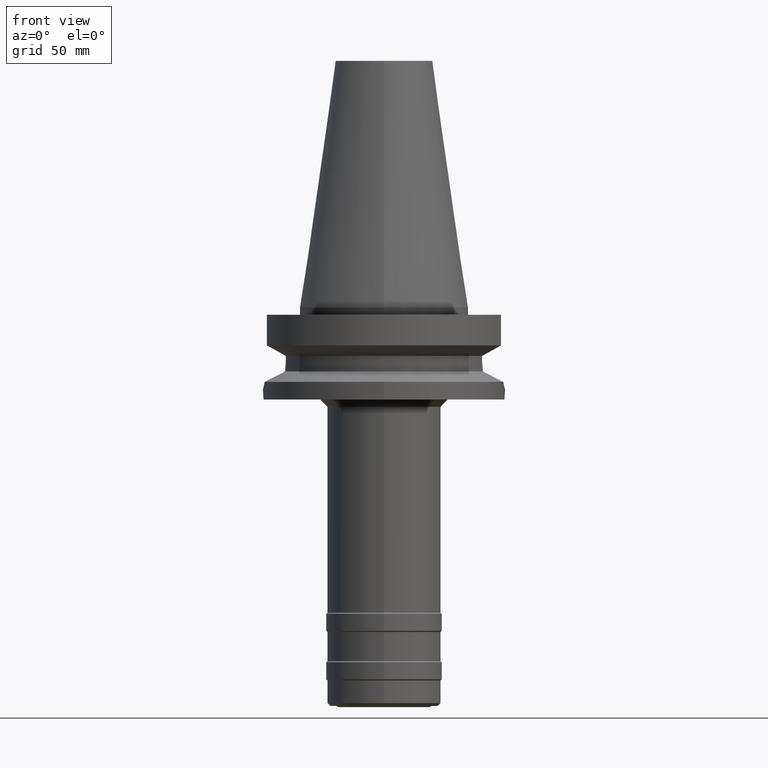
[diagram: clean part render]
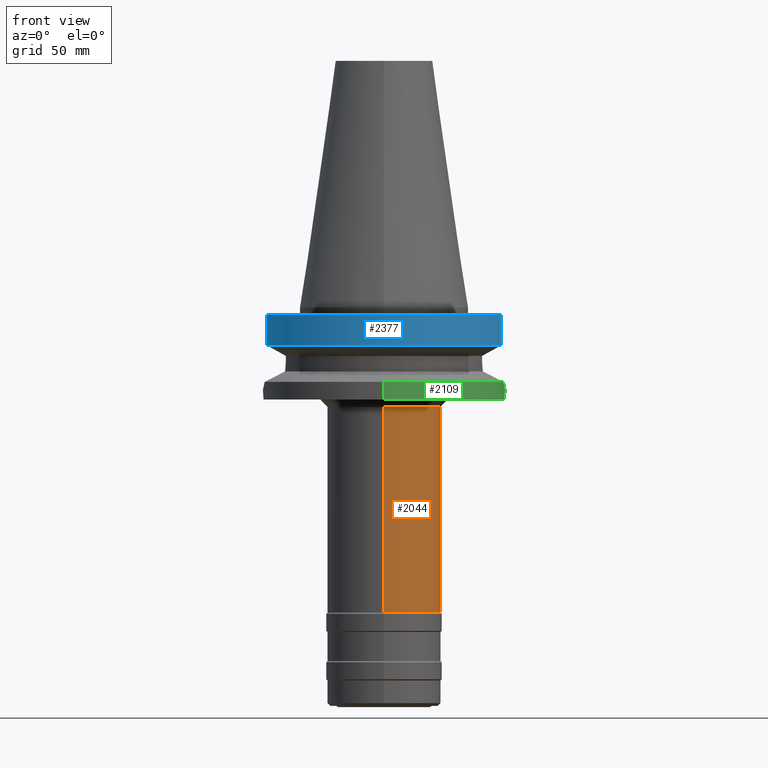
[diagram: same view with three faces highlighted in distinct colors, each labeled with its STEP entity id]
A machine part, front view with three faces highlighted in distinct colors.
Their STEP definitions:

[orange] entity #2044 — the highlighted cylindrical surface (partial cylindrical patch) has radius 23.5 mm, axis along (0, 0, -1).
#563=CARTESIAN_POINT('',(0.E0,0.E0,-1.26E2));
#564=DIRECTION('',(0.E0,0.E0,1.E0));
#565=DIRECTION('',(0.E0,-1.E0,0.E0));
#566=AXIS2_PLACEMENT_3D('',#563,#564,#565);
#594=DIRECTION('',(0.E0,0.E0,-1.E0));
#595=VECTOR('',#594,8.5E1);
#596=CARTESIAN_POINT('',(0.E0,-2.35E1,-4.1E1));
#597=LINE('',#596,#595);
#601=DIRECTION('',(0.E0,0.E0,-1.E0));
#602=VECTOR('',#601,8.5E1);
#603=CARTESIAN_POINT('',(0.E0,2.35E1,-4.1E1));
#604=LINE('',#603,#602);
#615=CARTESIAN_POINT('',(0.E0,0.E0,-4.1E1));
#616=DIRECTION('',(0.E0,0.E0,-1.E0));
#617=DIRECTION('',(0.E0,1.E0,0.E0));
#618=AXIS2_PLACEMENT_3D('',#615,#616,#617);
#1366=CARTESIAN_POINT('',(0.E0,2.35E1,-1.26E2));
#1367=VERTEX_POINT('',#1366);
#1368=CARTESIAN_POINT('',(0.E0,-2.35E1,-1.26E2));
#1369=VERTEX_POINT('',#1368);
#1370=CARTESIAN_POINT('',(0.E0,2.35E1,-4.1E1));
#1371=VERTEX_POINT('',#1370);
#1372=CARTESIAN_POINT('',(0.E0,-2.35E1,-4.1E1));
#1373=VERTEX_POINT('',#1372);
#2032=CARTESIAN_POINT('',(0.E0,2.634705123686E-14,1.1514E2));
#2033=DIRECTION('',(0.E0,0.E0,-1.E0));
#2034=DIRECTION('',(0.E0,-1.E0,0.E0));
#2035=AXIS2_PLACEMENT_3D('',#2032,#2033,#2034);
#2036=CYLINDRICAL_SURFACE('',#2035,2.35E1);
#2037=ORIENTED_EDGE('',*,*,#2022,.T.);
#2038=ORIENTED_EDGE('',*,*,#1999,.F.);
#2039=ORIENTED_EDGE('',*,*,#2026,.F.);
#2041=ORIENTED_EDGE('',*,*,#2040,.F.);
#2042=EDGE_LOOP('',(#2037,#2038,#2039,#2041));
#2043=FACE_OUTER_BOUND('',#2042,.F.);
#567=CIRCLE('',#566,2.35E1);
#619=CIRCLE('',#618,2.35E1);
#1999=EDGE_CURVE('',#1369,#1367,#567,.T.);
#2022=EDGE_CURVE('',#1371,#1367,#604,.T.);
#2026=EDGE_CURVE('',#1373,#1369,#597,.T.);
#2040=EDGE_CURVE('',#1371,#1373,#619,.T.);
#2044=ADVANCED_FACE('',(#2043),#2036,.T.);

[blue] entity #2377 — the highlighted cylindrical surface (partial cylindrical patch) has radius 50 mm, axis along (0, 0, -1).
#977=CARTESIAN_POINT('',(0.E0,2.634705123686E-14,-3.E0));
#978=DIRECTION('',(0.E0,0.E0,-1.E0));
#979=DIRECTION('',(9.664114030784E-1,-2.57E-1,0.E0));
#980=AXIS2_PLACEMENT_3D('',#977,#978,#979);
#985=CARTESIAN_POINT('',(0.E0,2.634705123686E-14,-3.E0));
#986=DIRECTION('',(0.E0,0.E0,-1.E0));
#987=DIRECTION('',(0.E0,-1.E0,0.E0));
#988=AXIS2_PLACEMENT_3D('',#985,#986,#987);
#1090=CARTESIAN_POINT('',(0.E0,1.006319759054E-14,-1.566269223573E1));
#1091=DIRECTION('',(0.E0,0.E0,1.E0));
#1092=DIRECTION('',(-9.664114030784E-1,-2.57E-1,0.E0));
#1093=AXIS2_PLACEMENT_3D('',#1090,#1091,#1092);
#1098=CARTESIAN_POINT('',(0.E0,1.006319759054E-14,-1.566269223573E1));
#1099=DIRECTION('',(0.E0,0.E0,1.E0));
#1100=DIRECTION('',(0.E0,-1.E0,0.E0));
#1101=AXIS2_PLACEMENT_3D('',#1098,#1099,#1100);
#1122=DIRECTION('',(-8.100800697241E-8,3.046187202871E-7,1.E0));
#1123=VECTOR('',#1122,1.266265768251E1);
#1124=CARTESIAN_POINT('',(-4.832056912814E1,-1.285000385728E1,
-1.566265768251E1));
#1125=LINE('',#1124,#1123);
#1129=DIRECTION('',(-8.103519278861E-8,-3.047209459814E-7,-1.E0));
#1130=VECTOR('',#1129,1.266265767091E1);
#1131=CARTESIAN_POINT('',(4.832057015392E1,-1.285E1,-3.E0));
#1132=LINE('',#1131,#1130);
#1431=CARTESIAN_POINT('',(-4.832057015392E1,-1.285E1,-3.E0));
#1432=VERTEX_POINT('',#1431);
#1433=CARTESIAN_POINT('',(-4.832056912814E1,-1.285000385728E1,
-1.566265768251E1));
#1434=VERTEX_POINT('',#1433);
#1447=CARTESIAN_POINT('',(4.832057015392E1,-1.285E1,-3.E0));
#1448=VERTEX_POINT('',#1447);
#1449=CARTESIAN_POINT('',(1.065814103640E-14,-5.E1,-3.E0));
#1450=VERTEX_POINT('',#1449);
#1464=CARTESIAN_POINT('',(0.E0,-5.E1,-1.566269223573E1));
#1465=CARTESIAN_POINT('',(4.832057015392E1,-1.285E1,-1.566269223573E1));
#1466=VERTEX_POINT('',#1464);
#1467=VERTEX_POINT('',#1465);
#2363=CARTESIAN_POINT('',(0.E0,2.634705123686E-14,1.1514E2));
#2364=DIRECTION('',(0.E0,0.E0,-1.E0));
#2365=DIRECTION('',(0.E0,-1.E0,0.E0));
#2366=AXIS2_PLACEMENT_3D('',#2363,#2364,#2365);
#2367=CYLINDRICAL_SURFACE('',#2366,5.E1);
#2368=ORIENTED_EDGE('',*,*,#2320,.T.);
#2369=ORIENTED_EDGE('',*,*,#2282,.F.);
#2370=ORIENTED_EDGE('',*,*,#2280,.F.);
#2372=ORIENTED_EDGE('',*,*,#2371,.T.);
#2373=ORIENTED_EDGE('',*,*,#2354,.F.);
#2374=ORIENTED_EDGE('',*,*,#2352,.F.);
#2375=EDGE_LOOP('',(#2368,#2369,#2370,#2372,#2373,#2374));
#2376=FACE_OUTER_BOUND('',#2375,.F.);
#981=CIRCLE('',#980,5.E1);
#989=CIRCLE('',#988,5.E1);
#1094=CIRCLE('',#1093,5.E1);
#1102=CIRCLE('',#1101,5.E1);
#2280=EDGE_CURVE('',#1448,#1450,#981,.T.);
#2282=EDGE_CURVE('',#1450,#1432,#989,.T.);
#2320=EDGE_CURVE('',#1434,#1432,#1125,.T.);
#2352=EDGE_CURVE('',#1434,#1466,#1094,.T.);
#2354=EDGE_CURVE('',#1466,#1467,#1102,.T.);
#2371=EDGE_CURVE('',#1448,#1467,#1132,.T.);
#2377=ADVANCED_FACE('',(#2376),#2367,.T.);

[green] entity #2109 — the highlighted cylindrical surface (partial cylindrical patch) has radius 50 mm, axis along (0, 0, -1).
#638=CARTESIAN_POINT('',(0.E0,2.634705123686E-14,-3.8E1));
#639=DIRECTION('',(0.E0,0.E0,1.E0));
#640=DIRECTION('',(0.E0,-1.E0,0.E0));
#641=AXIS2_PLACEMENT_3D('',#638,#639,#640);
#670=CARTESIAN_POINT('',(4.926250064874E1,-8.556052234130E0,-3.073730776427E1));
#671=CARTESIAN_POINT('',(4.936651029720E1,-7.957204163268E0,-3.127174094411E1));
#672=CARTESIAN_POINT('',(4.956431371444E1,-6.687589262989E0,-3.220428471372E1));
#673=CARTESIAN_POINT('',(4.980477980380E1,-4.596124605548E0,-3.322680717224E1));
#674=CARTESIAN_POINT('',(4.996456427671E1,-2.307360176151E0,-3.386328318673E1));
#675=CARTESIAN_POINT('',(5.000000025975E1,-7.763195910519E-1,
-3.400000114470E1));
#676=CARTESIAN_POINT('',(5.000000025975E1,1.776595111523E-14,
-3.400000114470E1));
#681=CARTESIAN_POINT('',(5.000000025975E1,1.776595111523E-14,
-3.400000114470E1));
#682=CARTESIAN_POINT('',(5.000000025975E1,7.764292768517E-1,-3.400000114470E1));
#683=CARTESIAN_POINT('',(4.996455389117E1,2.307631114121E0,-3.386324315456E1));
#684=CARTESIAN_POINT('',(4.980475009345E1,4.596442502866E0,-3.322668616837E1));
#685=CARTESIAN_POINT('',(4.956428048457E1,6.687819308674E0,-3.220413504195E1));
#686=CARTESIAN_POINT('',(4.936649605489E1,7.957286165075E0,-3.127166776280E1));
#687=CARTESIAN_POINT('',(4.926250064874E1,8.556052234130E0,-3.073730776427E1));
#692=DIRECTION('',(0.E0,2.152361642122E-14,-1.E0));
#693=VECTOR('',#692,7.262692235730E0);
#694=CARTESIAN_POINT('',(0.E0,5.E1,-3.073730776427E1));
#695=LINE('',#694,#693);
#749=CARTESIAN_POINT('',(0.E0,0.E0,-3.073730776427E1));
#750=DIRECTION('',(0.E0,0.E0,-1.E0));
#751=DIRECTION('',(9.852500129747E-1,-1.711210446826E-1,0.E0));
#752=AXIS2_PLACEMENT_3D('',#749,#750,#751);
#793=DIRECTION('',(0.E0,-2.250196262218E-14,-1.E0));
#794=VECTOR('',#793,7.262692235730E0);
#795=CARTESIAN_POINT('',(0.E0,-5.E1,-3.073730776427E1));
#796=LINE('',#795,#794);
#818=CARTESIAN_POINT('',(0.E0,0.E0,-3.073730776427E1));
#819=DIRECTION('',(0.E0,0.E0,-1.E0));
#820=DIRECTION('',(0.E0,1.E0,0.E0));
#821=AXIS2_PLACEMENT_3D('',#818,#819,#820);
#1378=CARTESIAN_POINT('',(0.E0,-5.E1,-3.8E1));
#1379=CARTESIAN_POINT('',(0.E0,5.E1,-3.8E1));
#1380=VERTEX_POINT('',#1378);
#1381=VERTEX_POINT('',#1379);
#1382=VERTEX_POINT('',#681);
#1383=VERTEX_POINT('',#687);
#1384=VERTEX_POINT('',#670);
#1385=CARTESIAN_POINT('',(0.E0,5.E1,-3.073730776427E1));
#1386=VERTEX_POINT('',#1385);
#1387=CARTESIAN_POINT('',(0.E0,-5.E1,-3.073730776427E1));
#1388=VERTEX_POINT('',#1387);
#2089=CARTESIAN_POINT('',(0.E0,2.634705123686E-14,1.1514E2));
#2090=DIRECTION('',(0.E0,0.E0,-1.E0));
#2091=DIRECTION('',(0.E0,-1.E0,0.E0));
#2092=AXIS2_PLACEMENT_3D('',#2089,#2090,#2091);
#2093=CYLINDRICAL_SURFACE('',#2092,5.E1);
#2095=ORIENTED_EDGE('',*,*,#2094,.T.);
#2097=ORIENTED_EDGE('',*,*,#2096,.T.);
#2099=ORIENTED_EDGE('',*,*,#2098,.F.);
#2101=ORIENTED_EDGE('',*,*,#2100,.T.);
#2102=ORIENTED_EDGE('',*,*,#2078,.F.);
#2104=ORIENTED_EDGE('',*,*,#2103,.F.);
#2106=ORIENTED_EDGE('',*,*,#2105,.F.);
#2107=EDGE_LOOP('',(#2095,#2097,#2099,#2101,#2102,#2104,#2106));
#2108=FACE_OUTER_BOUND('',#2107,.F.);
#642=CIRCLE('',#641,5.E1);
#677=B_SPLINE_CURVE_WITH_KNOTS('',3,(#670,#671,#672,#673,#674,#675,#676),
.UNSPECIFIED.,.F.,.F.,(4,1,1,1,4),(0.E0,2.5E-1,5.E-1,7.5E-1,1.E0),
.UNSPECIFIED.);
#688=B_SPLINE_CURVE_WITH_KNOTS('',3,(#681,#682,#683,#684,#685,#686,#687),
.UNSPECIFIED.,.F.,.F.,(4,1,1,1,4),(0.E0,2.5E-1,5.E-1,7.5E-1,1.E0),
.UNSPECIFIED.);
#753=CIRCLE('',#752,5.E1);
#822=CIRCLE('',#821,5.E1);
#2078=EDGE_CURVE('',#1380,#1381,#642,.T.);
#2094=EDGE_CURVE('',#1384,#1382,#677,.T.);
#2096=EDGE_CURVE('',#1382,#1383,#688,.T.);
#2098=EDGE_CURVE('',#1386,#1383,#822,.T.);
#2100=EDGE_CURVE('',#1386,#1381,#695,.T.);
#2103=EDGE_CURVE('',#1388,#1380,#796,.T.);
#2105=EDGE_CURVE('',#1384,#1388,#753,.T.);
#2109=ADVANCED_FACE('',(#2108),#2093,.T.);